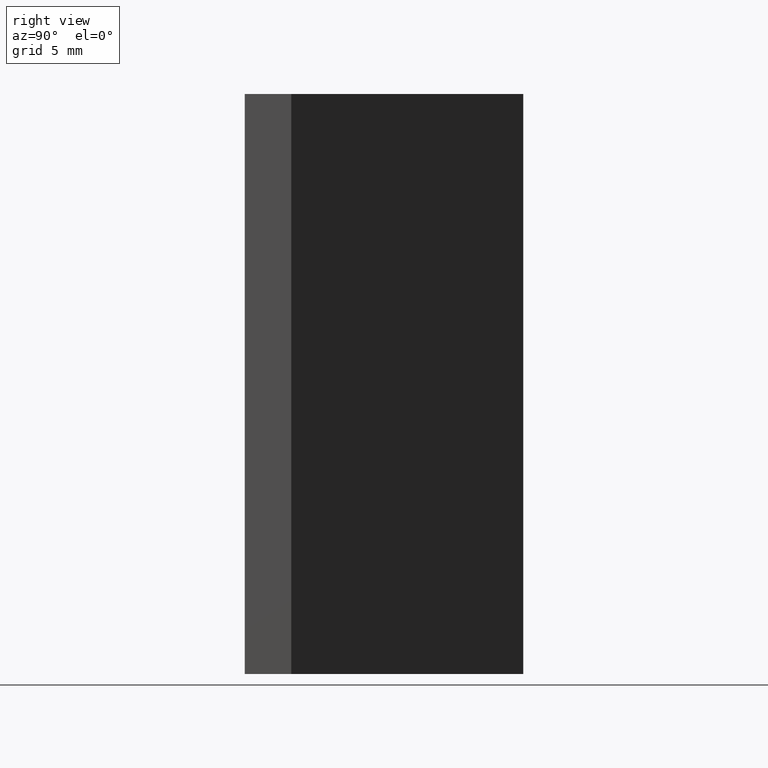
[diagram: clean part render]
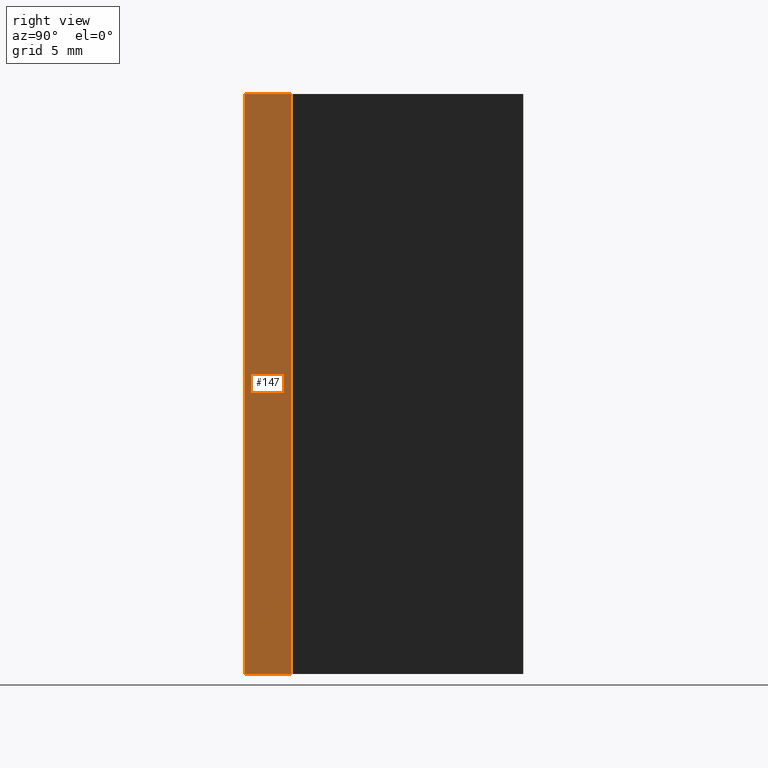
[diagram: same view with one face highlighted and labeled with its STEP entity id]
A machine part, right view. The second image highlights one B-rep face of the part: STEP entity #147.
In plain terms, the highlighted planar face has unit normal (1, 0, 0).
Its self-contained STEP definition (entity closure, byte-faithful):
#21=FACE_OUTER_BOUND('',#29,.T.);
#29=EDGE_LOOP('',(#120,#121,#122,#123));
#32=LINE('',#221,#50);
#46=LINE('',#248,#64);
#47=LINE('',#251,#65);
#48=LINE('',#252,#66);
#50=VECTOR('',#185,10.);
#64=VECTOR('',#207,10.);
#65=VECTOR('',#210,10.);
#66=VECTOR('',#211,10.);
#68=VERTEX_POINT('',#219);
#69=VERTEX_POINT('',#220);
#78=VERTEX_POINT('',#246);
#79=VERTEX_POINT('',#250);
#80=EDGE_CURVE('',#68,#69,#32,.T.);
#94=EDGE_CURVE('',#78,#69,#46,.T.);
#95=EDGE_CURVE('',#78,#79,#47,.T.);
#96=EDGE_CURVE('',#68,#79,#48,.T.);
#120=ORIENTED_EDGE('',*,*,#95,.T.);
#121=ORIENTED_EDGE('',*,*,#96,.F.);
#122=ORIENTED_EDGE('',*,*,#80,.T.);
#123=ORIENTED_EDGE('',*,*,#94,.F.);
#139=PLANE('',#178);
#147=ADVANCED_FACE('',(#21),#139,.T.);
#178=AXIS2_PLACEMENT_3D('',#249,#208,#209);
#185=DIRECTION('',(-5.55111512312578E-16,1.,0.));
#207=DIRECTION('',(0.,0.,-1.));
#208=DIRECTION('center_axis',(1.,5.55111512312578E-16,0.));
#209=DIRECTION('ref_axis',(0.,0.,-1.));
#210=DIRECTION('',(5.55111512312578E-16,-1.,0.));
#211=DIRECTION('',(0.,0.,1.));
#219=CARTESIAN_POINT('',(7.5,-6.,-12.5));
#220=CARTESIAN_POINT('',(7.5,-4.,-12.5));
#221=CARTESIAN_POINT('',(7.5,-4.,-12.5));
#246=CARTESIAN_POINT('',(7.5,-4.,12.5));
#248=CARTESIAN_POINT('',(7.5,-4.,0.));
#249=CARTESIAN_POINT('Origin',(7.5,-4.,0.));
#250=CARTESIAN_POINT('',(7.5,-6.,12.5));
#251=CARTESIAN_POINT('',(7.5,-4.,12.5));
#252=CARTESIAN_POINT('',(7.5,-6.,0.));